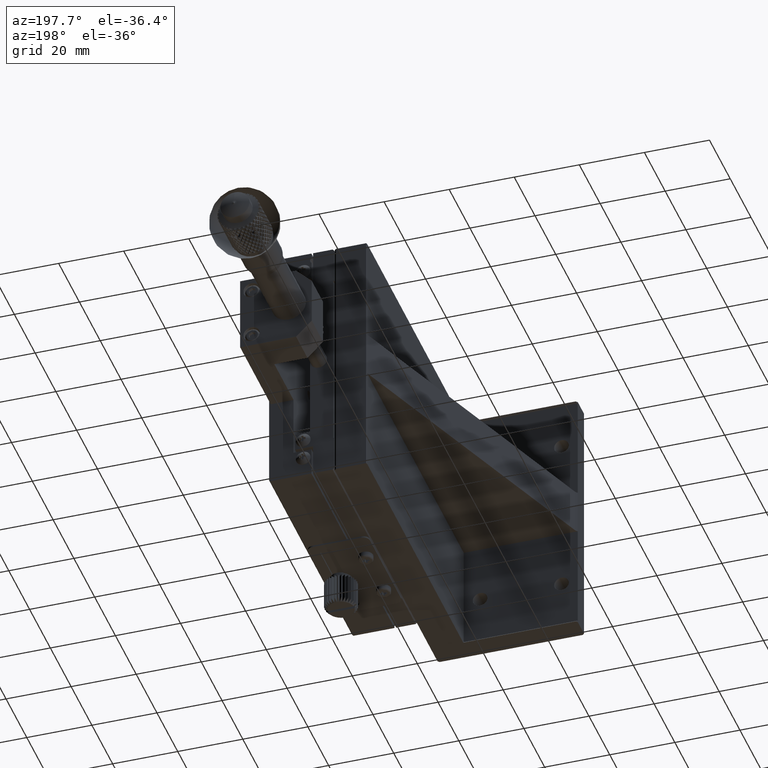
[diagram: clean part render]
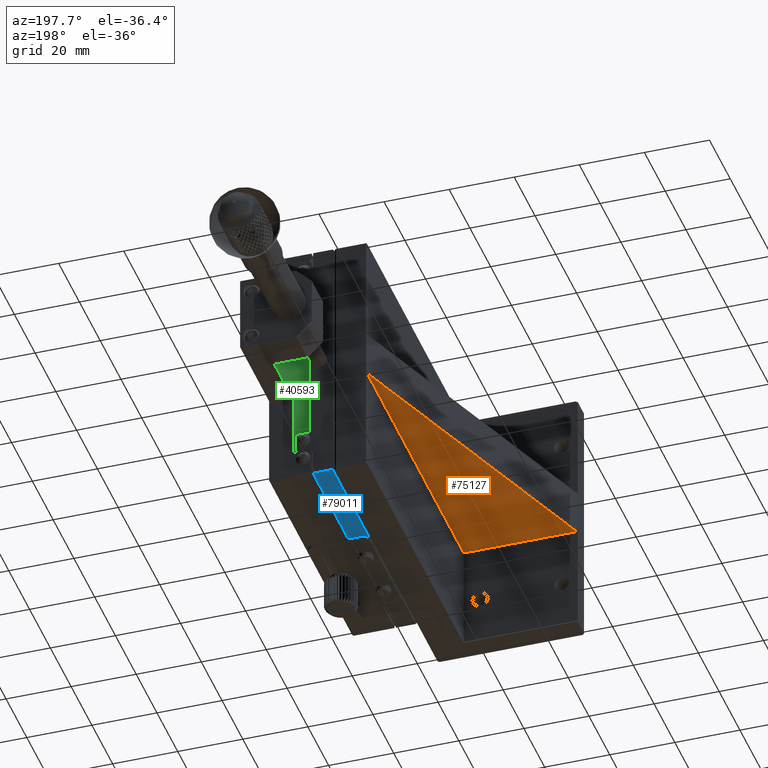
[diagram: same view with three faces highlighted in distinct colors, each labeled with its STEP entity id]
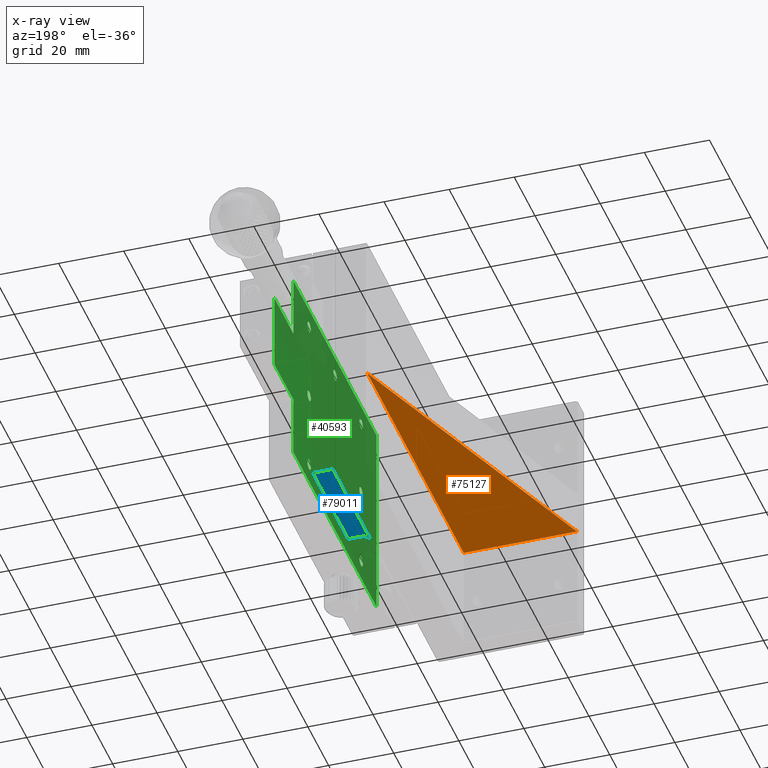
[diagram: x-ray of the same camera — body ghosted, the three highlighted faces saturated]
A machine part, auxiliary view with three faces highlighted in distinct colors.
The next image is the same camera in x-ray (body ghosted, the three faces saturated) — at least one of them is partly hidden behind the body in this view.
Their STEP definitions:

[orange] entity #75127 — the highlighted planar face has unit normal (0, 0, -1).
#696 = VECTOR ( 'NONE', #52514, 1000.000000000000000 ) ;
#2701 = CARTESIAN_POINT ( 'NONE',  ( -9.980000000000000426, 6.500000000000000888, -47.00000000000000000 ) ) ;
#11665 = EDGE_CURVE ( 'NONE', #100986, #50002, #27761, .T. ) ;
#12859 = DIRECTION ( 'NONE',  ( -1.000000000000000000, 0.000000000000000000, -0.000000000000000000 ) ) ;
#13762 = CARTESIAN_POINT ( 'NONE',  ( -44.50000000000001421, 7.000000000000004441, -47.00000000000000000 ) ) ;
#18552 = CARTESIAN_POINT ( 'NONE',  ( -45.00000000000000000, 6.500000000000005329, -47.00000000000000000 ) ) ;
#18912 = VECTOR ( 'NONE', #74814, 1000.000000000000000 ) ;
#19593 = DIRECTION ( 'NONE',  ( 0.7071067811865474617, 0.7071067811865474617, 0.000000000000000000 ) ) ;
#21503 = DIRECTION ( 'NONE',  ( 0.000000000000000000, 0.000000000000000000, -1.000000000000000000 ) ) ;
#27761 = LINE ( 'NONE', #18552, #61001 ) ;
#31353 = VECTOR ( 'NONE', #83131, 1000.000000000000114 ) ;
#34053 = CARTESIAN_POINT ( 'NONE',  ( -9.980000000000000426, 0.000000000000000000, -47.00000000000000000 ) ) ;
#36091 = ORIENTED_EDGE ( 'NONE', *, *, #11665, .T. ) ;
#38533 = CARTESIAN_POINT ( 'NONE',  ( -45.00000000000000711, 6.500000000000004441, -47.00000000000000000 ) ) ;
#41975 = EDGE_CURVE ( 'NONE', #100986, #42132, #68321, .T. ) ;
#42132 = VERTEX_POINT ( 'NONE', #56300 ) ;
#44863 = PLANE ( 'NONE',  #50203 ) ;
#46026 = EDGE_LOOP ( 'NONE', ( #36091, #79367, #88010, #90881 ) ) ;
#50002 = VERTEX_POINT ( 'NONE', #13762 ) ;
#50203 = AXIS2_PLACEMENT_3D ( 'NONE', #70379, #21503, #12859 ) ;
#52514 = DIRECTION ( 'NONE',  ( 1.000000000000000000, 0.000000000000000000, -0.000000000000000000 ) ) ;
#52963 = FACE_OUTER_BOUND ( 'NONE', #46026, .T. ) ;
#56106 = CARTESIAN_POINT ( 'NONE',  ( -9.979999999999995097, 99.55362318840582248, -47.00000000000000000 ) ) ;
#56300 = CARTESIAN_POINT ( 'NONE',  ( -9.980000000000000426, 6.500000000000005329, -47.00000000000000000 ) ) ;
#58770 = CARTESIAN_POINT ( 'NONE',  ( -9.813513513513509423, 100.0000000000000000, -46.99999999999998579 ) ) ;
#61001 = VECTOR ( 'NONE', #19593, 1000.000000000000114 ) ;
#63151 = EDGE_CURVE ( 'NONE', #72456, #42132, #99212, .T. ) ;
#68321 = LINE ( 'NONE', #2701, #696 ) ;
#70379 = CARTESIAN_POINT ( 'NONE',  ( -9.980000000000000426, 100.0000000000000000, -47.00000000000000000 ) ) ;
#72456 = VERTEX_POINT ( 'NONE', #56106 ) ;
#74814 = DIRECTION ( 'NONE',  ( 0.000000000000000000, -1.000000000000000000, -0.000000000000000000 ) ) ;
#75127 = ADVANCED_FACE ( 'NONE', ( #52963 ), #44863, .T. ) ;
#79367 = ORIENTED_EDGE ( 'NONE', *, *, #91532, .F. ) ;
#83131 = DIRECTION ( 'NONE',  ( -0.3494578104706320687, -0.9369521005372002387, 0.000000000000000000 ) ) ;
#84734 = LINE ( 'NONE', #58770, #31353 ) ;
#88010 = ORIENTED_EDGE ( 'NONE', *, *, #63151, .T. ) ;
#90881 = ORIENTED_EDGE ( 'NONE', *, *, #41975, .F. ) ;
#91532 = EDGE_CURVE ( 'NONE', #72456, #50002, #84734, .T. ) ;
#99212 = LINE ( 'NONE', #34053, #18912 ) ;
#100986 = VERTEX_POINT ( 'NONE', #38533 ) ;

[blue] entity #79011 — the highlighted planar face has unit normal (0, 0, 1).
#4768 = VECTOR ( 'NONE', #12063, 1000.000000000000000 ) ;
#6552 = CARTESIAN_POINT ( 'NONE',  ( 0.000000000000000000, 100.0000000000000000, -80.00000000000000000 ) ) ;
#10193 = ORIENTED_EDGE ( 'NONE', *, *, #92516, .T. ) ;
#12063 = DIRECTION ( 'NONE',  ( -0.000000000000000000, -1.000000000000000000, -0.000000000000000000 ) ) ;
#19509 = DIRECTION ( 'NONE',  ( 1.000000000000000000, 0.000000000000000000, 0.000000000000000000 ) ) ;
#20940 = VERTEX_POINT ( 'NONE', #29025 ) ;
#22892 = DIRECTION ( 'NONE',  ( 1.000000000000000000, 0.000000000000000000, 0.000000000000000000 ) ) ;
#23967 = DIRECTION ( 'NONE',  ( 0.000000000000000000, 0.000000000000000000, 1.000000000000000000 ) ) ;
#26660 = EDGE_LOOP ( 'NONE', ( #106029, #85199, #43895, #10193, #31719 ) ) ;
#27183 = VERTEX_POINT ( 'NONE', #85406 ) ;
#29025 = CARTESIAN_POINT ( 'NONE',  ( 0.5000000000000099920, 100.0000000000000000, -80.00000000000000000 ) ) ;
#30316 = LINE ( 'NONE', #44439, #66028 ) ;
#31719 = ORIENTED_EDGE ( 'NONE', *, *, #96163, .F. ) ;
#33401 = VECTOR ( 'NONE', #91049, 1000.000000000000000 ) ;
#35744 = CARTESIAN_POINT ( 'NONE',  ( 2.500000000000000000, 64.00000000000000000, -80.00000000000000000 ) ) ;
#41877 = CIRCLE ( 'NONE', #50530, 2.000000000000000444 ) ;
#43895 = ORIENTED_EDGE ( 'NONE', *, *, #79143, .F. ) ;
#44439 = CARTESIAN_POINT ( 'NONE',  ( 6.500000000000010658, 100.0000000000000000, -80.00000000000000000 ) ) ;
#49283 = CARTESIAN_POINT ( 'NONE',  ( 6.500000000000009770, 66.00000000000000000, -80.00000000000000000 ) ) ;
#50530 = AXIS2_PLACEMENT_3D ( 'NONE', #35744, #78093, #19509 ) ;
#53790 = LINE ( 'NONE', #79818, #4768 ) ;
#54307 = VECTOR ( 'NONE', #79722, 1000.000000000000000 ) ;
#61284 = DIRECTION ( 'NONE',  ( -0.000000000000000000, -1.000000000000000000, -0.000000000000000000 ) ) ;
#63602 = LINE ( 'NONE', #49283, #33401 ) ;
#65110 = LINE ( 'NONE', #6552, #54307 ) ;
#66028 = VECTOR ( 'NONE', #61284, 1000.000000000000000 ) ;
#72523 = CARTESIAN_POINT ( 'NONE',  ( 6.500000000000010658, 66.00000000000000000, -80.00000000000000000 ) ) ;
#75078 = AXIS2_PLACEMENT_3D ( 'NONE', #96635, #23967, #22892 ) ;
#77534 = CARTESIAN_POINT ( 'NONE',  ( 2.499999999999999556, 66.00000000000000000, -80.00000000000000000 ) ) ;
#78093 = DIRECTION ( 'NONE',  ( -0.000000000000000000, -0.000000000000000000, -1.000000000000000000 ) ) ;
#79011 = ADVANCED_FACE ( 'NONE', ( #88504 ), #105868, .F. ) ;
#79143 = EDGE_CURVE ( 'NONE', #105360, #20940, #65110, .T. ) ;
#79722 = DIRECTION ( 'NONE',  ( -1.000000000000000000, -0.000000000000000000, -0.000000000000000000 ) ) ;
#79818 = CARTESIAN_POINT ( 'NONE',  ( 0.5000000000000099920, 100.0000000000000000, -80.00000000000000000 ) ) ;
#85199 = ORIENTED_EDGE ( 'NONE', *, *, #85748, .F. ) ;
#85406 = CARTESIAN_POINT ( 'NONE',  ( 0.5000000000000049960, 64.00000000000000000, -80.00000000000000000 ) ) ;
#85748 = EDGE_CURVE ( 'NONE', #20940, #27183, #53790, .T. ) ;
#88504 = FACE_OUTER_BOUND ( 'NONE', #26660, .T. ) ;
#88608 = CARTESIAN_POINT ( 'NONE',  ( 6.500000000000010658, 100.0000000000000000, -80.00000000000000000 ) ) ;
#91049 = DIRECTION ( 'NONE',  ( 1.000000000000000000, 0.000000000000000000, 0.000000000000000000 ) ) ;
#91933 = EDGE_CURVE ( 'NONE', #27183, #93576, #41877, .T. ) ;
#92516 = EDGE_CURVE ( 'NONE', #105360, #95501, #30316, .T. ) ;
#93576 = VERTEX_POINT ( 'NONE', #77534 ) ;
#95501 = VERTEX_POINT ( 'NONE', #72523 ) ;
#96163 = EDGE_CURVE ( 'NONE', #93576, #95501, #63602, .T. ) ;
#96635 = CARTESIAN_POINT ( 'NONE',  ( 6.500000000000009770, 100.0000000000000000, -80.00000000000000000 ) ) ;
#105360 = VERTEX_POINT ( 'NONE', #88608 ) ;
#105868 = PLANE ( 'NONE',  #75078 ) ;
#106029 = ORIENTED_EDGE ( 'NONE', *, *, #91933, .F. ) ;

[green] entity #40593 — the highlighted planar face has unit normal (1, 0, 0).
#613 = FACE_BOUND ( 'NONE', #34542, .T. ) ;
#653 = EDGE_LOOP ( 'NONE', ( #12391 ) ) ;
#800 = ORIENTED_EDGE ( 'NONE', *, *, #60104, .F. ) ;
#1311 = VECTOR ( 'NONE', #54078, 1000.000000000000000 ) ;
#2398 = LINE ( 'NONE', #91870, #65776 ) ;
#2649 = CARTESIAN_POINT ( 'NONE',  ( 12.50000000000000000, 35.00000000000000000, -40.00000000000000000 ) ) ;
#2866 = VECTOR ( 'NONE', #66984, 1000.000000000000000 ) ;
#3211 = CARTESIAN_POINT ( 'NONE',  ( 12.50000000000000000, 100.0000000000000000, -71.20000000000000284 ) ) ;
#4109 = CARTESIAN_POINT ( 'NONE',  ( 12.50000000000000000, 100.0000000000000000, -27.99999999999999645 ) ) ;
#5017 = VERTEX_POINT ( 'NONE', #88446 ) ;
#5410 = CARTESIAN_POINT ( 'NONE',  ( 12.50000000000000000, 20.00000000000000000, -71.20000000000000284 ) ) ;
#6179 = DIRECTION ( 'NONE',  ( -0.000000000000000000, -0.000000000000000000, 1.000000000000000000 ) ) ;
#6398 = LINE ( 'NONE', #47028, #1311 ) ;
#6993 = DIRECTION ( 'NONE',  ( 0.000000000000000000, 0.000000000000000000, 1.000000000000000000 ) ) ;
#7277 = VERTEX_POINT ( 'NONE', #87868 ) ;
#8753 = CARTESIAN_POINT ( 'NONE',  ( 12.50000000000000000, 35.00000000000000000, -63.37900000000000489 ) ) ;
#8768 = EDGE_CURVE ( 'NONE', #30648, #101264, #36807, .T. ) ;
#10893 = AXIS2_PLACEMENT_3D ( 'NONE', #3211, #83979, #36202 ) ;
#12391 = ORIENTED_EDGE ( 'NONE', *, *, #76703, .F. ) ;
#13941 = ORIENTED_EDGE ( 'NONE', *, *, #67448, .F. ) ;
#14099 = CIRCLE ( 'NONE', #66092, 1.620999999999997332 ) ;
#14671 = FACE_BOUND ( 'NONE', #653, .T. ) ;
#14766 = DIRECTION ( 'NONE',  ( -1.000000000000000000, 0.000000000000000000, 0.000000000000000000 ) ) ;
#15029 = VECTOR ( 'NONE', #56547, 1000.000000000000000 ) ;
#15857 = CARTESIAN_POINT ( 'NONE',  ( 12.50000000000000000, 85.00000000000000000, -40.00000000000000000 ) ) ;
#15885 = ORIENTED_EDGE ( 'NONE', *, *, #8768, .T. ) ;
#16825 = FACE_BOUND ( 'NONE', #68124, .T. ) ;
#17247 = EDGE_CURVE ( 'NONE', #88817, #7277, #23458, .T. ) ;
#18624 = DIRECTION ( 'NONE',  ( -0.000000000000000000, 1.000000000000000000, 0.000000000000000000 ) ) ;
#22290 = VERTEX_POINT ( 'NONE', #70633 ) ;
#23321 = FACE_BOUND ( 'NONE', #59049, .T. ) ;
#23458 = LINE ( 'NONE', #72299, #15029 ) ;
#23471 = CARTESIAN_POINT ( 'NONE',  ( 12.50000000000000000, 118.5000000000000142, -71.20000000000000284 ) ) ;
#24830 = EDGE_CURVE ( 'NONE', #22290, #22290, #41783, .T. ) ;
#25877 = CARTESIAN_POINT ( 'NONE',  ( 12.50000000000000000, 118.5000000000000000, -27.99999999999999645 ) ) ;
#25955 = CARTESIAN_POINT ( 'NONE',  ( 12.50000000000000000, 60.00000000000000000, -65.00000000000000000 ) ) ;
#26349 = EDGE_CURVE ( 'NONE', #38547, #28410, #77817, .T. ) ;
#26727 = DIRECTION ( 'NONE',  ( 0.000000000000000000, 0.000000000000000000, 1.000000000000000000 ) ) ;
#27542 = AXIS2_PLACEMENT_3D ( 'NONE', #78207, #102077, #26727 ) ;
#27794 = DIRECTION ( 'NONE',  ( -1.000000000000000000, 0.000000000000000000, 0.000000000000000000 ) ) ;
#28410 = VERTEX_POINT ( 'NONE', #76633 ) ;
#28469 = CARTESIAN_POINT ( 'NONE',  ( 12.50000000000000000, 60.00000000000000000, -15.00000000000000000 ) ) ;
#28849 = CARTESIAN_POINT ( 'NONE',  ( 12.50000000000000000, 100.0000000000000000, -71.20000000000000284 ) ) ;
#30423 = ORIENTED_EDGE ( 'NONE', *, *, #17247, .F. ) ;
#30648 = VERTEX_POINT ( 'NONE', #55167 ) ;
#30932 = EDGE_CURVE ( 'NONE', #5017, #5017, #87502, .T. ) ;
#31458 = FACE_BOUND ( 'NONE', #45270, .T. ) ;
#32884 = VECTOR ( 'NONE', #94307, 1000.000000000000000 ) ;
#32969 = CARTESIAN_POINT ( 'NONE',  ( 12.50000000000000000, 100.0000000000000000, -52.00000000000000711 ) ) ;
#33607 = VERTEX_POINT ( 'NONE', #75946 ) ;
#34542 = EDGE_LOOP ( 'NONE', ( #59389 ) ) ;
#34544 = EDGE_LOOP ( 'NONE', ( #15885, #55904, #75739, #78204, #30423, #800, #43859, #86546 ) ) ;
#36202 = DIRECTION ( 'NONE',  ( 0.000000000000000000, 0.000000000000000000, -1.000000000000000000 ) ) ;
#36719 = EDGE_CURVE ( 'NONE', #71946, #87470, #45050, .T. ) ;
#36807 = LINE ( 'NONE', #68354, #32884 ) ;
#37100 = AXIS2_PLACEMENT_3D ( 'NONE', #59179, #43415, #78104 ) ;
#37135 = DIRECTION ( 'NONE',  ( -1.000000000000000000, 0.000000000000000000, 0.000000000000000000 ) ) ;
#37734 = EDGE_LOOP ( 'NONE', ( #65567 ) ) ;
#38547 = VERTEX_POINT ( 'NONE', #25877 ) ;
#40256 = EDGE_LOOP ( 'NONE', ( #98176 ) ) ;
#40530 = CARTESIAN_POINT ( 'NONE',  ( 12.50000000000000000, 35.00000000000000000, -15.00000000000000000 ) ) ;
#40593 = ADVANCED_FACE ( 'NONE', ( #41185, #58009, #23321, #80790, #56410, #14671, #613, #31458, #16825 ), #49853, .F. ) ;
#40754 = AXIS2_PLACEMENT_3D ( 'NONE', #28469, #37135, #71371 ) ;
#41185 = FACE_OUTER_BOUND ( 'NONE', #34544, .T. ) ;
#41293 = DIRECTION ( 'NONE',  ( 0.000000000000000000, 0.000000000000000000, 1.000000000000000000 ) ) ;
#41783 = CIRCLE ( 'NONE', #74729, 1.621000000000000885 ) ;
#43415 = DIRECTION ( 'NONE',  ( -1.000000000000000000, 0.000000000000000000, 0.000000000000000000 ) ) ;
#43859 = ORIENTED_EDGE ( 'NONE', *, *, #36719, .F. ) ;
#43869 = ORIENTED_EDGE ( 'NONE', *, *, #67061, .F. ) ;
#45050 = LINE ( 'NONE', #75086, #70817 ) ;
#45270 = EDGE_LOOP ( 'NONE', ( #53971 ) ) ;
#45822 = DIRECTION ( 'NONE',  ( 0.000000000000000000, -1.000000000000000000, -0.000000000000000000 ) ) ;
#47028 = CARTESIAN_POINT ( 'NONE',  ( 12.50000000000000000, 100.0000000000000000, -2.500000000000000000 ) ) ;
#48197 = VECTOR ( 'NONE', #6179, 1000.000000000000000 ) ;
#49381 = VERTEX_POINT ( 'NONE', #98199 ) ;
#49599 = EDGE_LOOP ( 'NONE', ( #13941 ) ) ;
#49853 = PLANE ( 'NONE',  #10893 ) ;
#50006 = CIRCLE ( 'NONE', #27542, 1.621000000000000885 ) ;
#51101 = DIRECTION ( 'NONE',  ( 0.000000000000000000, 0.000000000000000000, 1.000000000000000000 ) ) ;
#51118 = EDGE_CURVE ( 'NONE', #88988, #88988, #85481, .T. ) ;
#51723 = CIRCLE ( 'NONE', #63978, 1.620999999999997332 ) ;
#53971 = ORIENTED_EDGE ( 'NONE', *, *, #88300, .F. ) ;
#54078 = DIRECTION ( 'NONE',  ( 0.000000000000000000, -0.000000000000000000, 1.000000000000000000 ) ) ;
#55167 = CARTESIAN_POINT ( 'NONE',  ( 12.50000000000000000, 20.00000000000000000, -8.800000000000000711 ) ) ;
#55904 = ORIENTED_EDGE ( 'NONE', *, *, #56887, .F. ) ;
#56410 = FACE_BOUND ( 'NONE', #37734, .T. ) ;
#56462 = CARTESIAN_POINT ( 'NONE',  ( 12.50000000000000000, 85.00000000000000000, -63.37900000000000489 ) ) ;
#56547 = DIRECTION ( 'NONE',  ( -0.000000000000000000, 1.000000000000000000, 0.000000000000000000 ) ) ;
#56887 = EDGE_CURVE ( 'NONE', #28410, #101264, #82649, .T. ) ;
#57580 = VECTOR ( 'NONE', #45822, 1000.000000000000000 ) ;
#58009 = FACE_BOUND ( 'NONE', #40256, .T. ) ;
#58147 = CIRCLE ( 'NONE', #68540, 1.620999999999997332 ) ;
#59049 = EDGE_LOOP ( 'NONE', ( #43869 ) ) ;
#59179 = CARTESIAN_POINT ( 'NONE',  ( 12.50000000000000000, 35.00000000000000000, -65.00000000000000000 ) ) ;
#59389 = ORIENTED_EDGE ( 'NONE', *, *, #24830, .F. ) ;
#60104 = EDGE_CURVE ( 'NONE', #87470, #88817, #6398, .T. ) ;
#60737 = CARTESIAN_POINT ( 'NONE',  ( 12.50000000000000000, 35.00000000000000000, -38.37900000000000489 ) ) ;
#60894 = CARTESIAN_POINT ( 'NONE',  ( 12.50000000000000000, 85.00000000000000000, -65.00000000000000000 ) ) ;
#62185 = EDGE_CURVE ( 'NONE', #7277, #38547, #71777, .T. ) ;
#62835 = EDGE_CURVE ( 'NONE', #72760, #72760, #51723, .T. ) ;
#63978 = AXIS2_PLACEMENT_3D ( 'NONE', #15857, #14766, #41293 ) ;
#65567 = ORIENTED_EDGE ( 'NONE', *, *, #51118, .F. ) ;
#65776 = VECTOR ( 'NONE', #66962, 1000.000000000000000 ) ;
#66092 = AXIS2_PLACEMENT_3D ( 'NONE', #2649, #69339, #93174 ) ;
#66610 = DIRECTION ( 'NONE',  ( -1.000000000000000000, 0.000000000000000000, 0.000000000000000000 ) ) ;
#66962 = DIRECTION ( 'NONE',  ( 0.000000000000000000, -0.000000000000000000, 1.000000000000000000 ) ) ;
#66984 = DIRECTION ( 'NONE',  ( 0.000000000000000000, -0.000000000000000000, 1.000000000000000000 ) ) ;
#67061 = EDGE_CURVE ( 'NONE', #97657, #97657, #71069, .T. ) ;
#67448 = EDGE_CURVE ( 'NONE', #49381, #49381, #58147, .T. ) ;
#68124 = EDGE_LOOP ( 'NONE', ( #79629 ) ) ;
#68354 = CARTESIAN_POINT ( 'NONE',  ( 12.50000000000000000, 100.0000000000000000, -8.800000000000000711 ) ) ;
#68540 = AXIS2_PLACEMENT_3D ( 'NONE', #25955, #75850, #101296 ) ;
#69339 = DIRECTION ( 'NONE',  ( -1.000000000000000000, 0.000000000000000000, 0.000000000000000000 ) ) ;
#70633 = CARTESIAN_POINT ( 'NONE',  ( 12.50000000000000000, 35.00000000000000000, -13.37899999999999778 ) ) ;
#70817 = VECTOR ( 'NONE', #18624, 1000.000000000000000 ) ;
#71069 = CIRCLE ( 'NONE', #97026, 1.620999999999997332 ) ;
#71371 = DIRECTION ( 'NONE',  ( 0.000000000000000000, 0.000000000000000000, 1.000000000000000000 ) ) ;
#71777 = LINE ( 'NONE', #23471, #48197 ) ;
#71946 = VERTEX_POINT ( 'NONE', #5410 ) ;
#72299 = CARTESIAN_POINT ( 'NONE',  ( 12.50000000000000000, 100.0000000000000000, -52.00000000000000711 ) ) ;
#72509 = EDGE_CURVE ( 'NONE', #71946, #30648, #2398, .T. ) ;
#72760 = VERTEX_POINT ( 'NONE', #90600 ) ;
#74729 = AXIS2_PLACEMENT_3D ( 'NONE', #40530, #66610, #6993 ) ;
#75086 = CARTESIAN_POINT ( 'NONE',  ( 12.50000000000000000, 100.0000000000000000, -71.20000000000000284 ) ) ;
#75623 = CARTESIAN_POINT ( 'NONE',  ( 12.50000000000000000, 100.0000000000000000, -2.500000000000000000 ) ) ;
#75739 = ORIENTED_EDGE ( 'NONE', *, *, #26349, .F. ) ;
#75850 = DIRECTION ( 'NONE',  ( -1.000000000000000000, 0.000000000000000000, 0.000000000000000000 ) ) ;
#75946 = CARTESIAN_POINT ( 'NONE',  ( 12.50000000000000000, 85.00000000000000000, -13.37899999999999778 ) ) ;
#76633 = CARTESIAN_POINT ( 'NONE',  ( 12.50000000000000000, 100.0000000000000000, -27.99999999999999645 ) ) ;
#76703 = EDGE_CURVE ( 'NONE', #84568, #84568, #14099, .T. ) ;
#77817 = LINE ( 'NONE', #4109, #57580 ) ;
#78104 = DIRECTION ( 'NONE',  ( 0.000000000000000000, 0.000000000000000000, 1.000000000000000000 ) ) ;
#78204 = ORIENTED_EDGE ( 'NONE', *, *, #62185, .F. ) ;
#78207 = CARTESIAN_POINT ( 'NONE',  ( 12.50000000000000000, 85.00000000000000000, -15.00000000000000000 ) ) ;
#79629 = ORIENTED_EDGE ( 'NONE', *, *, #30932, .F. ) ;
#80790 = FACE_BOUND ( 'NONE', #49599, .T. ) ;
#82649 = LINE ( 'NONE', #75623, #2866 ) ;
#83201 = CARTESIAN_POINT ( 'NONE',  ( 12.50000000000000000, 100.0000000000000000, -8.800000000000000711 ) ) ;
#83979 = DIRECTION ( 'NONE',  ( 1.000000000000000000, 0.000000000000000000, 0.000000000000000000 ) ) ;
#84568 = VERTEX_POINT ( 'NONE', #60737 ) ;
#85481 = CIRCLE ( 'NONE', #37100, 1.620999999999997332 ) ;
#86546 = ORIENTED_EDGE ( 'NONE', *, *, #72509, .T. ) ;
#87470 = VERTEX_POINT ( 'NONE', #28849 ) ;
#87502 = CIRCLE ( 'NONE', #40754, 1.621000000000000885 ) ;
#87868 = CARTESIAN_POINT ( 'NONE',  ( 12.50000000000000000, 118.5000000000000000, -52.00000000000001421 ) ) ;
#88300 = EDGE_CURVE ( 'NONE', #33607, #33607, #50006, .T. ) ;
#88446 = CARTESIAN_POINT ( 'NONE',  ( 12.50000000000000000, 60.00000000000000000, -13.37899999999999778 ) ) ;
#88817 = VERTEX_POINT ( 'NONE', #32969 ) ;
#88988 = VERTEX_POINT ( 'NONE', #8753 ) ;
#90600 = CARTESIAN_POINT ( 'NONE',  ( 12.50000000000000000, 85.00000000000000000, -38.37900000000000489 ) ) ;
#91870 = CARTESIAN_POINT ( 'NONE',  ( 12.50000000000000000, 20.00000000000000000, -2.500000000000000000 ) ) ;
#93174 = DIRECTION ( 'NONE',  ( 0.000000000000000000, 0.000000000000000000, 1.000000000000000000 ) ) ;
#94307 = DIRECTION ( 'NONE',  ( 0.000000000000000000, 1.000000000000000000, -0.000000000000000000 ) ) ;
#97026 = AXIS2_PLACEMENT_3D ( 'NONE', #60894, #27794, #51101 ) ;
#97657 = VERTEX_POINT ( 'NONE', #56462 ) ;
#98176 = ORIENTED_EDGE ( 'NONE', *, *, #62835, .F. ) ;
#98199 = CARTESIAN_POINT ( 'NONE',  ( 12.50000000000000000, 60.00000000000000000, -63.37900000000000489 ) ) ;
#101264 = VERTEX_POINT ( 'NONE', #83201 ) ;
#101296 = DIRECTION ( 'NONE',  ( 0.000000000000000000, 0.000000000000000000, 1.000000000000000000 ) ) ;
#102077 = DIRECTION ( 'NONE',  ( -1.000000000000000000, 0.000000000000000000, 0.000000000000000000 ) ) ;